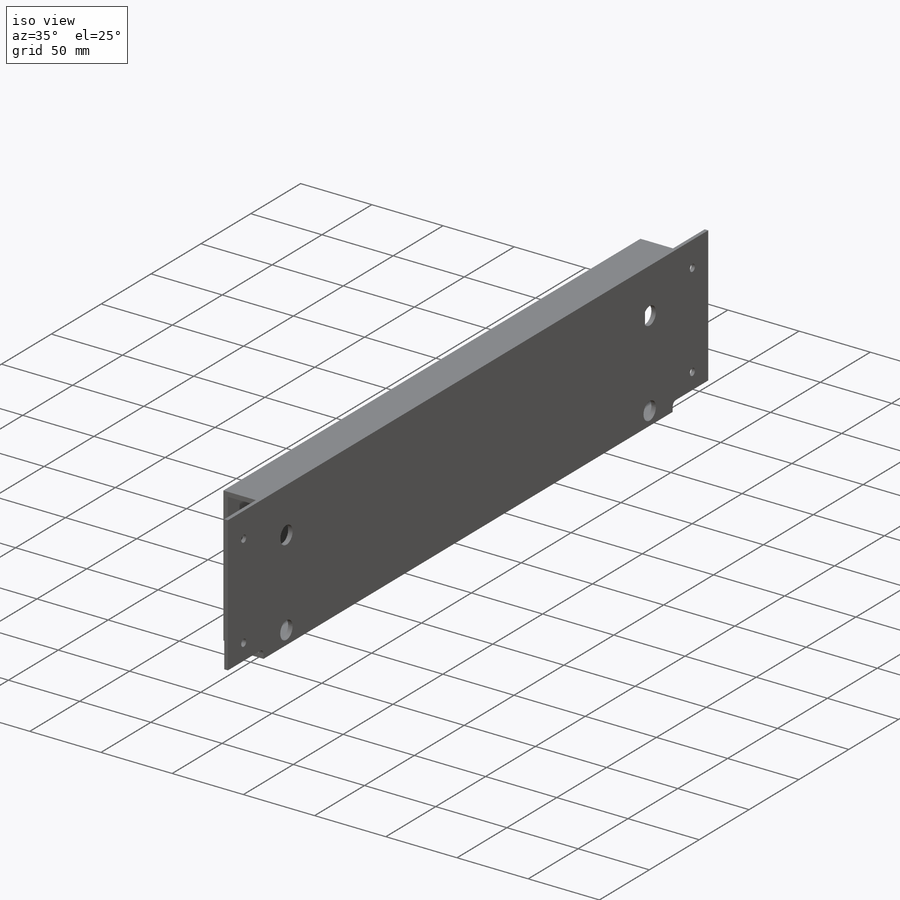
[diagram: iso view]
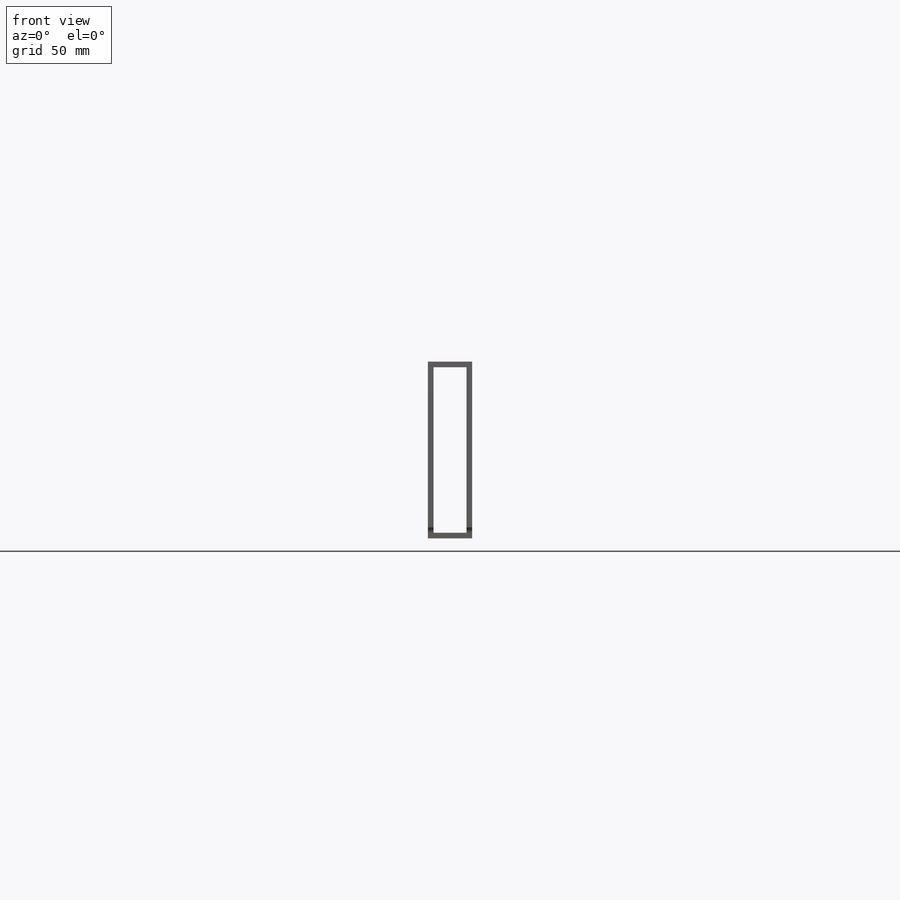
[diagram: front view]
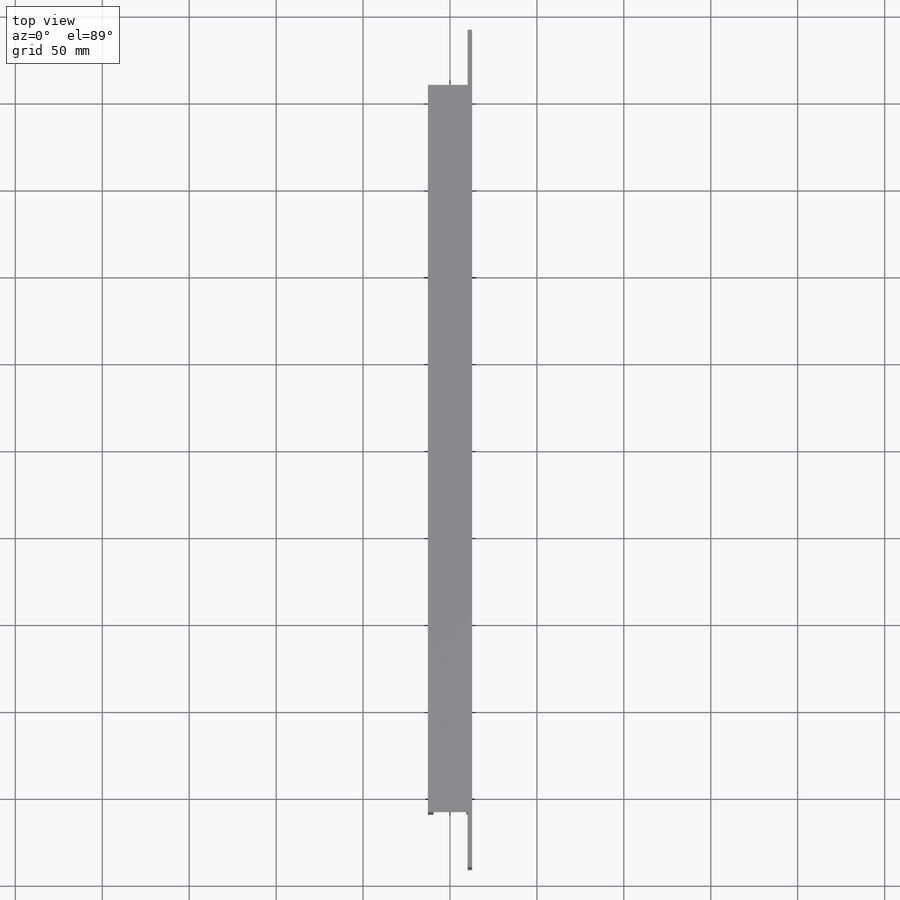
[diagram: top view]
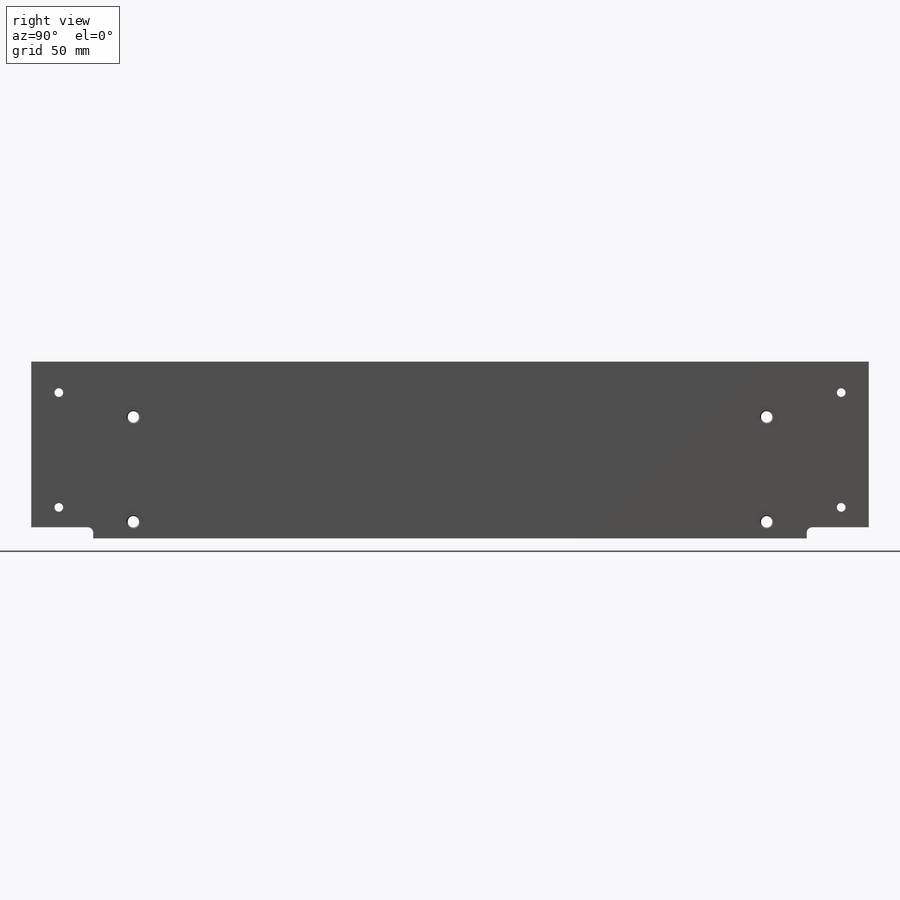
[diagram: right view]
SOLIDWORKS PART (.sldprt)
format: sldprt  version: not decoded by parser v0  size: 361,472 bytes
history: native  units: mm
features: sketch x9, cut_extrude x3, mirror x3, hole x2, material x1, fillet x1 (+11 scaffold rows collapsed)
feature tree (30):
  scaffold x11  (default folders/planes/origin — collapsed)
  material  "6061-T6 (SS)"
  sketch  "Sketch1"  dims[c1.D1=25.4mm c1.D2=101.6mm c2.D1=481.75mm c2.D5=3.175mm c2.D6=1.0mm c2.D7=5.0mm]
  sketch  "Sketch2"  dims[D1=31.75mm]
  cut_extrude  "Cut-Extrude1"  Depth=2.54mm
  sketch  "Sketch3"  dims[D1=6.35mm D2=~35.71875mm]
  cut_extrude  "Cut-Extrude2"  [1 undecoded]
  sketch  "Sketch4"  dims[D1=33.02mm]
  hole  "#10 Clearance Hole1"  Diameter=4.9784mm Depth=2.54mm
  sketch  "Sketch6"
  sketch  "Sketch5"  dims[hole-wizard template sketch: 60 standard entries collapsed; hole parameters kept: c18.Thru Hole Depth=2.54mm]
  mirror  "Mirror1"
  mirror  "Mirror2"
  fillet  "Fillet1"  Radius=3.175mm
  sketch  "Sketch7"  dims[D3=12.446mm D1=26.9875mm D2=9.525mm D4=31.75mm]
  cut_extrude  "Cut-Extrude3"  [1 undecoded]
  hole  "1/4 Clearance Hole1"  Diameter=6.5278mm Depth=3.175mm
  sketch  "Sketch9"
  sketch  "Sketch8"  dims[hole-wizard template sketch: 46 standard entries collapsed; hole parameters kept: c15.Thru Hole Dia.=6.5278mm c15.Thru Hole Depth=3.175mm c15.Near C'Sink Dia.=7.7978mm c15.D4=~3.666174mm c15.Near C'Sink Angle=90.0deg c15.Far C'Sink Dia.=7.7978mm c15.D6=~9.919017mm c15.Far C'Sink Angle=90.0deg]
  mirror  "Mirror3"
decode coverage: 11 of 18 modeling features carry decoded parameters
note: ~ marks probable driven/reference dimensions
note: 2 parameter values undecoded
note: suppression state not decoded; provenance and decode notes live in map.json
